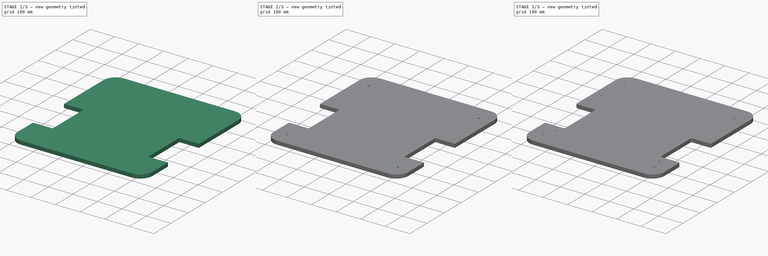
[diagram: build sequence overview — one tinted view per stage of 3, left to right]
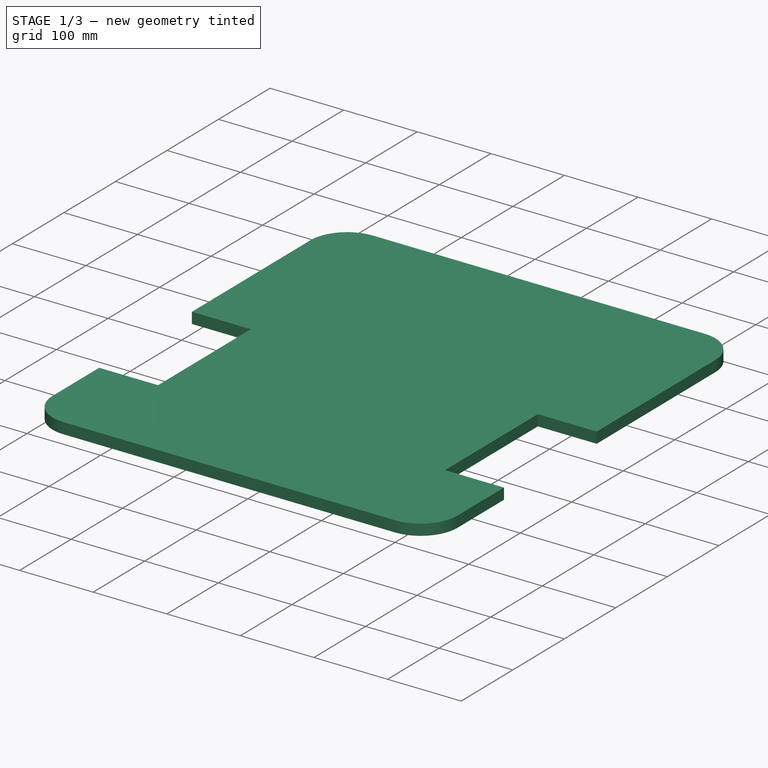
[diagram: stage 1 of 3 — iso view after this stage's code; geometry added in this stage tinted green]
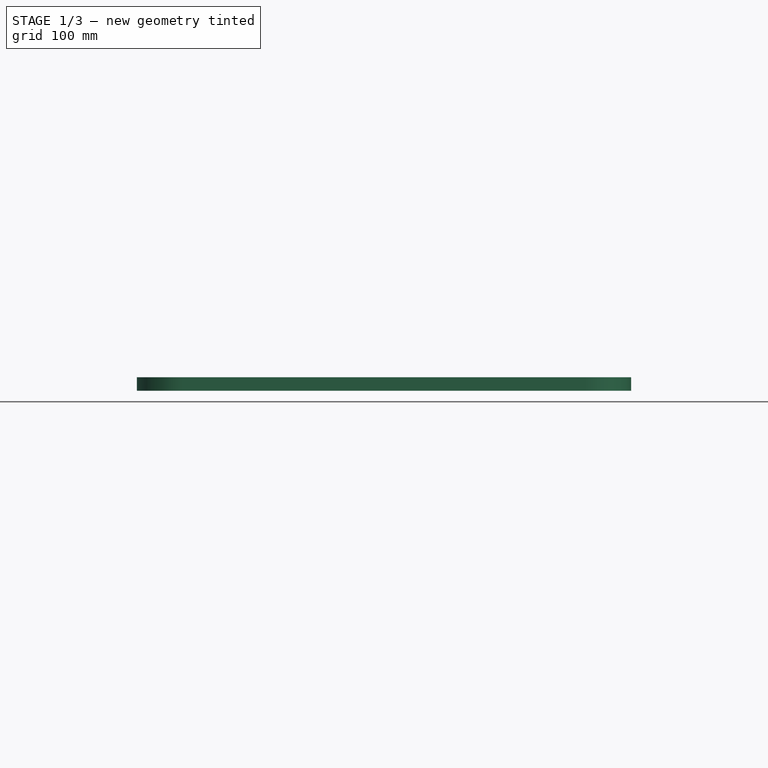
[diagram: stage 1 of 3 — front view after this stage's code; geometry added in this stage tinted green]
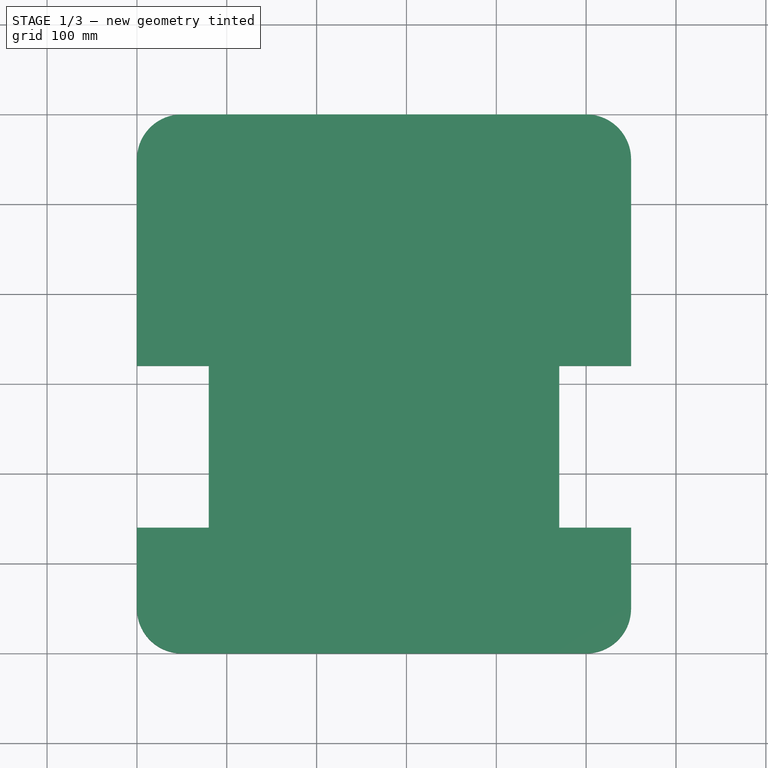
[diagram: stage 1 of 3 — top view after this stage's code; geometry added in this stage tinted green]
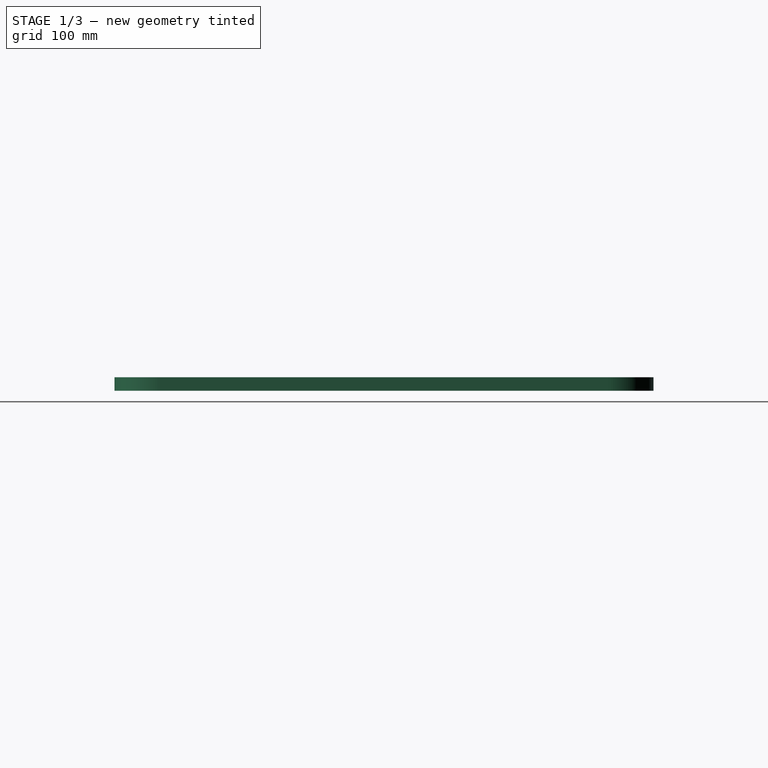
[diagram: stage 1 of 3 — right view after this stage's code; geometry added in this stage tinted green]
FCSTD DOCUMENT  (FreeCAD 0.20R29410 (Git))
Label: AGV02-101A_Base chassis
License: All rights reserved
LicenseURL: http://en.wikipedia.org/wiki/All_rights_reserved
objects: Sketcher::SketchObject×4, PartDesign::Hole×2, PartDesign::Pad×1, PartDesign::Pocket×1, PartDesign::Fillet×1, PartDesign::Body×1
note: 15 computed .brp shape members not serialized (recipe doc carries the construction recipe); baked Part::Feature solids carry a one-line shape summary decoded from their .brp

FEATURE [Sketcher::SketchObject] Sketch
  FullyConstrained = false
  MapMode = 5
  Support = -> [XY_Plane]
  sketch-geometry (16):
    g0: LineSegment StartX=50 StartY=0 StartZ=0 EndX=500 EndY=0 EndZ=0
    g1: LineSegment StartX=550 StartY=50 StartZ=0 EndX=550 EndY=140 EndZ=0
    g2: LineSegment StartX=500 StartY=600 StartZ=0 EndX=50 EndY=600 EndZ=0
    g3: LineSegment StartX=0 StartY=550 StartZ=0 EndX=0 EndY=320 EndZ=0
    g4: ArcOfCircle CenterX=50 CenterY=550 CenterZ=0 NormalX=0 NormalY=0 NormalZ=1 AngleXU=0 Radius=50 StartAngle=1.5708 EndAngle=3.14159
    g5: ArcOfCircle CenterX=50 CenterY=50 CenterZ=0 NormalX=0 NormalY=0 NormalZ=1 AngleXU=0 Radius=50 StartAngle=3.14159 EndAngle=4.71239
    g6: ArcOfCircle CenterX=500 CenterY=550 CenterZ=0 NormalX=0 NormalY=0 NormalZ=1 AngleXU=0 Radius=50 StartAngle=-9e-16 EndAngle=1.5708
    g7: ArcOfCircle CenterX=500 CenterY=50 CenterZ=0 NormalX=0 NormalY=0 NormalZ=1 AngleXU=0 Radius=50 StartAngle=4.71239 EndAngle=6.28319
    g8: LineSegment StartX=0 StartY=320 StartZ=0 EndX=80 EndY=320 EndZ=0
    g9: LineSegment StartX=80 StartY=320 StartZ=0 EndX=80 EndY=140 EndZ=0
    g10: LineSegment StartX=80 StartY=140 StartZ=0 EndX=0 EndY=140 EndZ=0
    g11: LineSegment StartX=550 StartY=320 StartZ=0 EndX=470 EndY=320 EndZ=0
    g12: LineSegment StartX=470 StartY=320 StartZ=0 EndX=470 EndY=140 EndZ=0
    g13: LineSegment StartX=470 StartY=140 StartZ=0 EndX=550 EndY=140 EndZ=0
    g14: LineSegment StartX=0 StartY=140 StartZ=0 EndX=0 EndY=50.0001 EndZ=0
    g15: LineSegment StartX=550 StartY=320 StartZ=0 EndX=550 EndY=550 EndZ=0
  constraints (40):
    c: Horizontal(g0)
    c: Horizontal(g2)
    c: Vertical(g1)
    c: Vertical(g3)
    c: Tangent(g3,g4) = -1.5708
    c: Tangent(g2,g4) = -1.5708
    c: Tangent(g0,g5) = -1.5708
    c: Coincident(g14,g5) = -1.5708
    c: Radius(g5) = 50
    c: Vertical(g14,g-1)
    c: Radius(g4) = 50
    c: Tangent(g2,g6) = -1.5708
    c: Coincident(g15,g6) = -1.5708
    c: Radius(g6) = 50
    c: Tangent(g1,g7) = -1.5708
    c: Tangent(g0,g7) = -1.5708
    c: Radius(g7) = 50
    c: DistanceX(g14,g1) = 550
    c: Horizontal(g0,g-1)
    c: DistanceY(g0,g2) = 600
    c: Coincident(g8,g9)
    c: Coincident(g9,g10)
    c: Horizontal(g8)
    c: Horizontal(g10)
    c: Vertical(g9)
    c: Coincident(g11,g12)
    c: Coincident(g12,g13)
    c: Horizontal(g11)
    c: Horizontal(g13)
    c: Vertical(g12)
    c: DistanceY(g9,g9) = 180
    c: DistanceX(g10,g10) = 80
    c: DistanceY(g-1,g9) = 140
    c: DistanceX(g12,g13) = 80
    c: DistanceY(g12,g12) = 180
    c: Coincident(g3,g8)
    c: PointOnObject(g14,g10)
    c: PointOnObject(g1,g13)
    c: Coincident(g15,g11)
    c: Horizontal(g12,g9)
FEATURE [PartDesign::Pad] Pad
  Direction = (0,0,1)
  Length = 15
  Length2 = 10
  Profile = -> Sketch
  ReferenceAxis = -> Sketch [N_Axis]
  Type = 0
FEATURE [Sketcher::SketchObject] Sketch001
  FullyConstrained = true
  MapMode = 5
  Placement = pos=(0,0,0) rot=(1,0,0;3.14159rad)
  Support = -> [Pad]
  sketch-geometry (4):
    g0: Circle CenterX=500 CenterY=-60 CenterZ=0 NormalX=0 NormalY=0 NormalZ=1 AngleXU=0 Radius=30
    g1: Circle CenterX=50 CenterY=-60 CenterZ=0 NormalX=0 NormalY=0 NormalZ=1 AngleXU=0 Radius=30
    g2: Circle CenterX=500 CenterY=-530 CenterZ=0 NormalX=0 NormalY=0 NormalZ=1 AngleXU=0 Radius=30
    g3: Circle CenterX=50 CenterY=-530 CenterZ=0 NormalX=0 NormalY=0 NormalZ=1 AngleXU=0 Radius=30
  constraints (12):
    c: Diameter(g0) = 60
    c: Diameter(g1) = 60
    c: Diameter(g3) = 60
    c: Diameter(g2) = 60
    c: Vertical(g2,g0)
    c: Vertical(g3,g1)
    c: Horizontal(g2,g3)
    c: Horizontal(g0,g1)
    c: DistanceX(g1,g0) = 450
    c: DistanceX(g-1,g1) = 50
    c: DistanceY(g1,g-1) = 60
    c: DistanceY(g3,g-1) = 530
FEATURE [PartDesign::Pocket] Pocket
  BaseFeature = -> Pad
  Direction = (0,0,1)
  Length = 5
  Length2 = 5
  Profile = -> Sketch001
  ReferenceAxis = -> Sketch001 [N_Axis]
  Type = 0
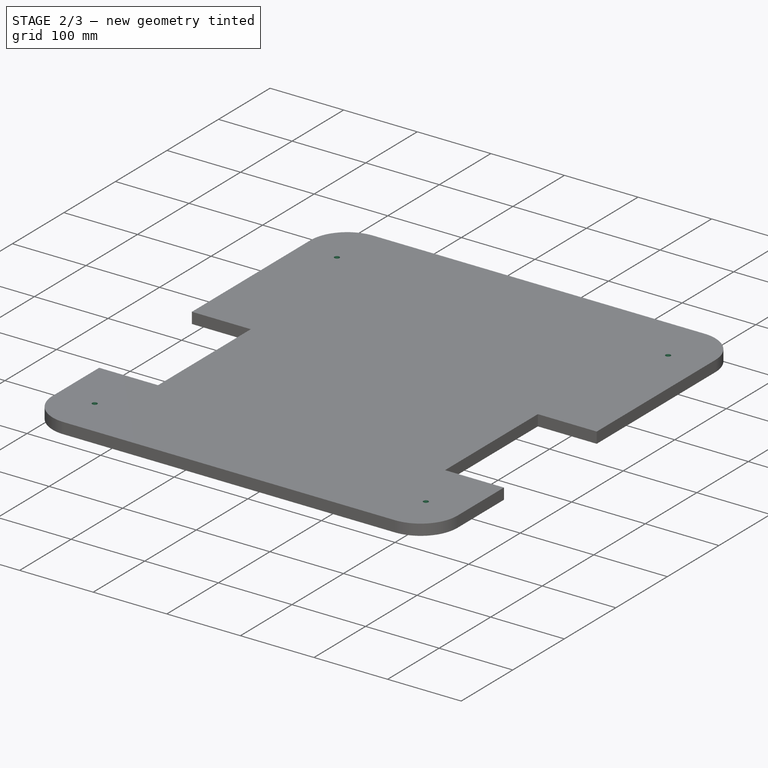
[diagram: stage 2 of 3 — iso view after this stage's code; geometry added in this stage tinted green]
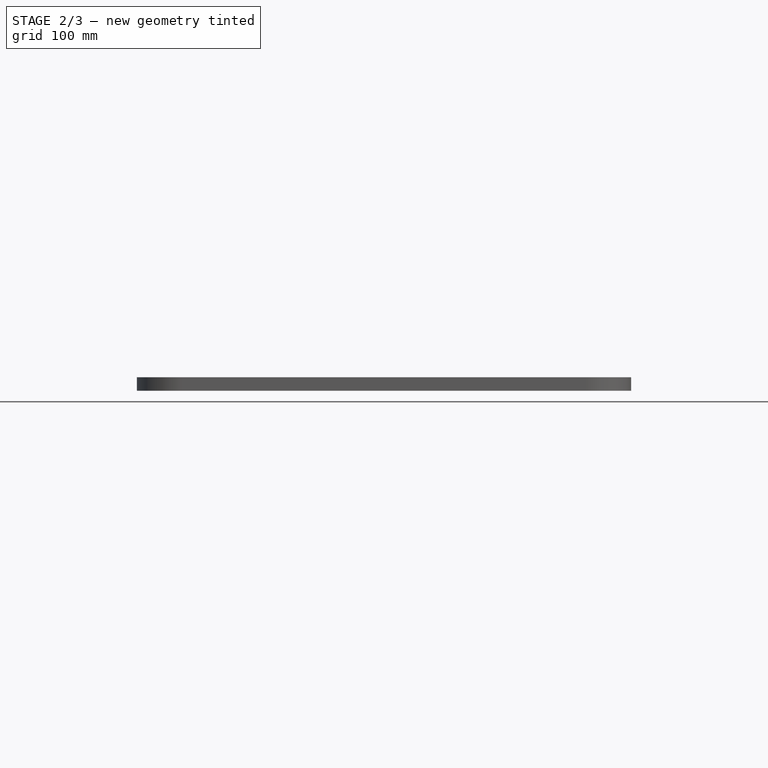
[diagram: stage 2 of 3 — front view after this stage's code; geometry added in this stage tinted green]
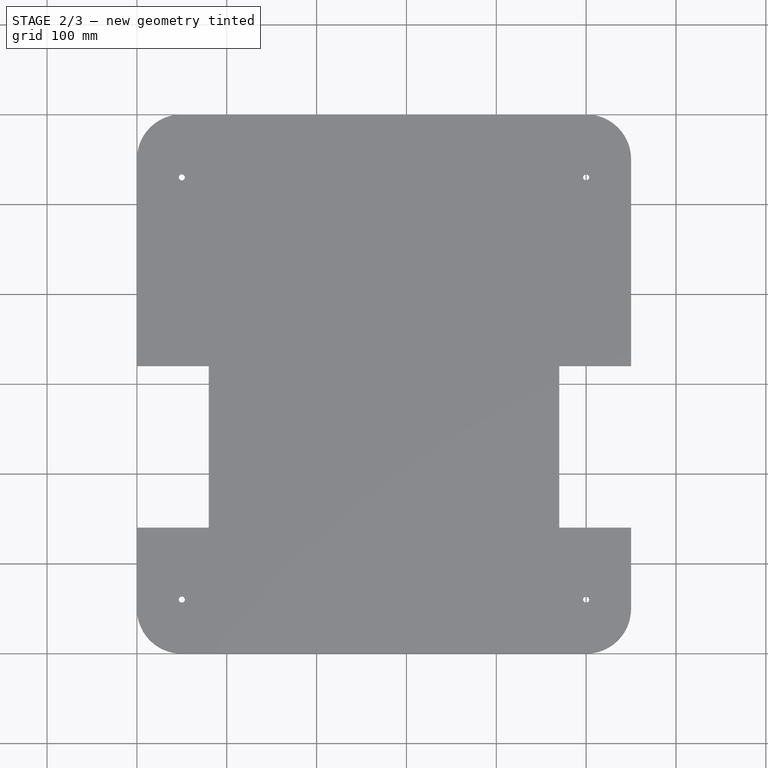
[diagram: stage 2 of 3 — top view after this stage's code; geometry added in this stage tinted green]
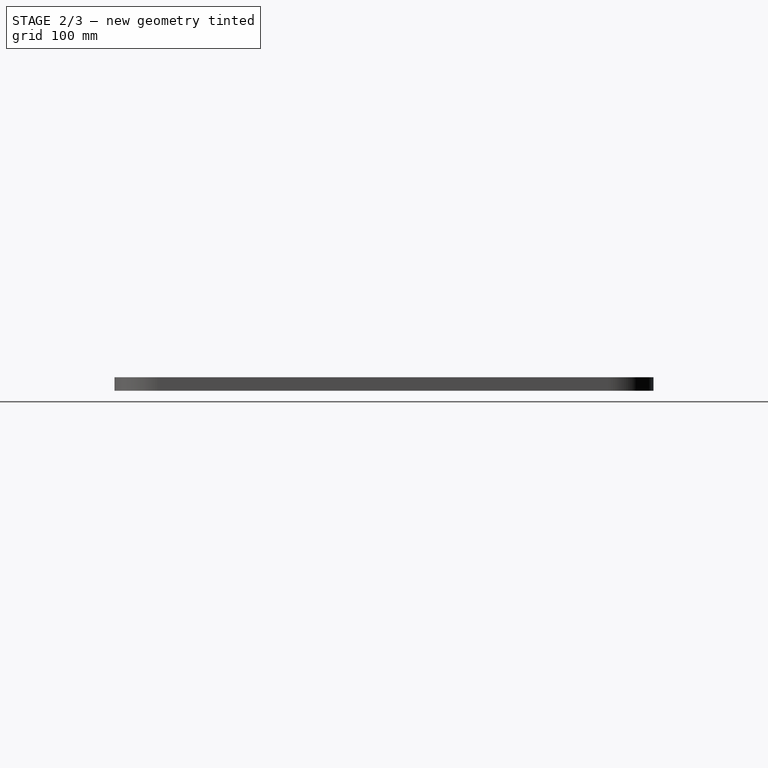
[diagram: stage 2 of 3 — right view after this stage's code; geometry added in this stage tinted green]
FEATURE [Sketcher::SketchObject] Sketch002
  ExternalGeometry = -> [Pocket]
  FullyConstrained = false
  MapMode = 5
  Placement = pos=(0,0,0) rot=(1,0,0;3.14159rad)
  Support = -> [Pocket]
  sketch-geometry (5):
    g0: GeomPoint X=50 Y=-60 Z=0
    g1: Circle CenterX=50 CenterY=-60 CenterZ=0 NormalX=0 NormalY=0 NormalZ=1 AngleXU=0 Radius=9.50673
    g2: Circle CenterX=500 CenterY=-60 CenterZ=0 NormalX=0 NormalY=0 NormalZ=1 AngleXU=0 Radius=11.4574
    g3: Circle CenterX=500 CenterY=-530 CenterZ=0 NormalX=0 NormalY=0 NormalZ=1 AngleXU=0 Radius=11.2641
    g4: Circle CenterX=50 CenterY=-530 CenterZ=0 NormalX=0 NormalY=0 NormalZ=1 AngleXU=0 Radius=10.4268
  constraints (4):
    c: Coincident(g1,g0)
    c: Coincident(g2,g-4)
    c: Coincident(g3,g-5)
    c: Coincident(g4,g-6)
FEATURE [PartDesign::Hole] Hole
  BaseFeature = -> Pocket
  CustomThreadClearance = 0
  Depth = 1644.44
  DepthType = 1
  Diameter = 6.8
  DrillForDepth = false
  DrillPoint = 1
  DrillPointAngle = 118
  HoleCutCountersinkAngle = 90
  HoleCutCustomValues = false
  HoleCutDepth = 0
  HoleCutDiameter = 6.1
  HoleCutType = 0
  ModelThread = false
  Profile = -> Sketch002
  Tapered = false
  TaperedAngle = 90
  ThreadClass = 0
  ThreadDepth = 1644.44
  ThreadDepthType = 0
  ThreadDirection = 0
  ThreadFit = 0
  ThreadSize = 16
  ThreadType = 1
  Threaded = true
  UseCustomThreadClearance = false
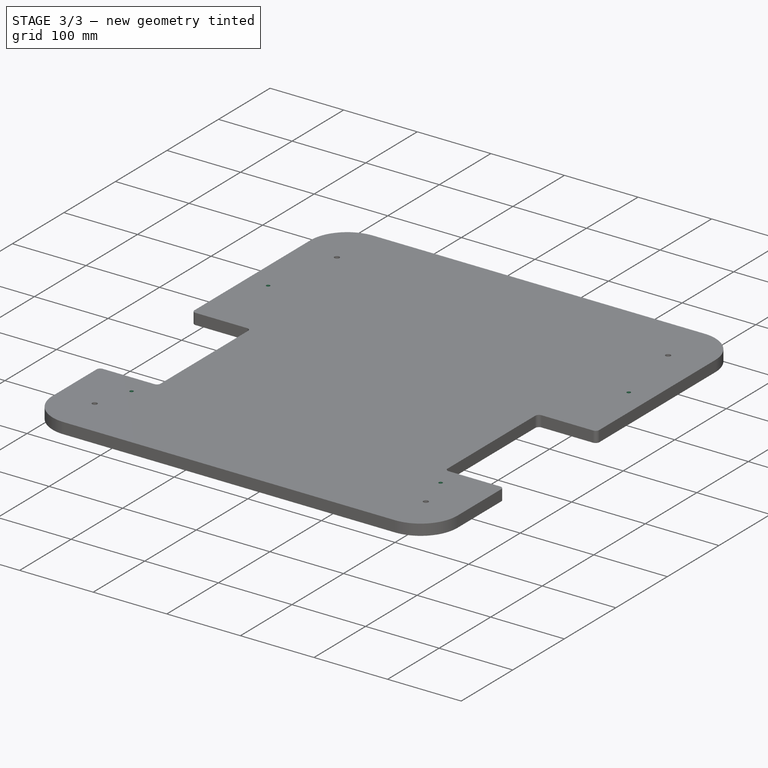
[diagram: stage 3 of 3 — iso view after this stage's code; geometry added in this stage tinted green]
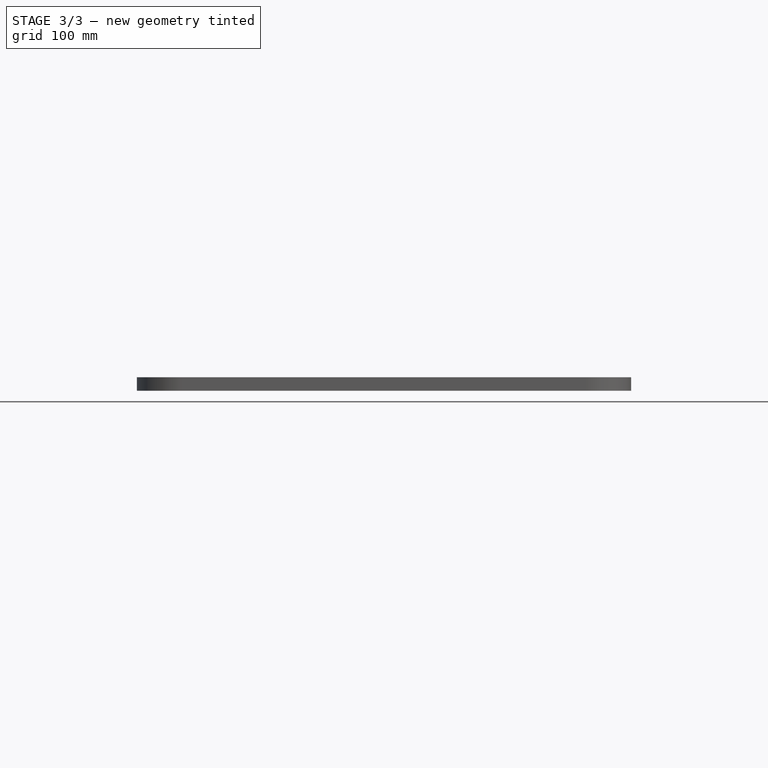
[diagram: stage 3 of 3 — front view after this stage's code; geometry added in this stage tinted green]
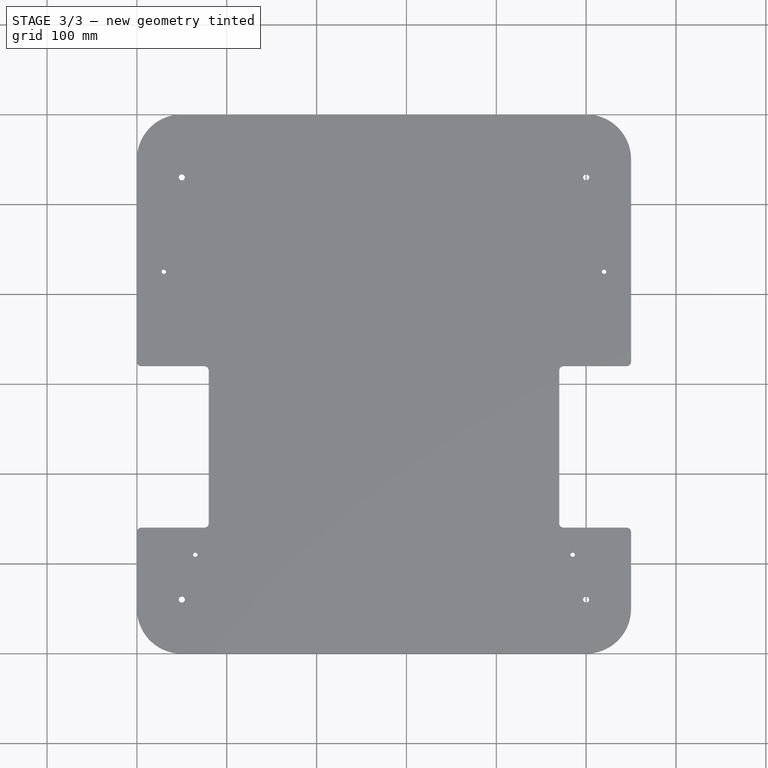
[diagram: stage 3 of 3 — top view after this stage's code; geometry added in this stage tinted green]
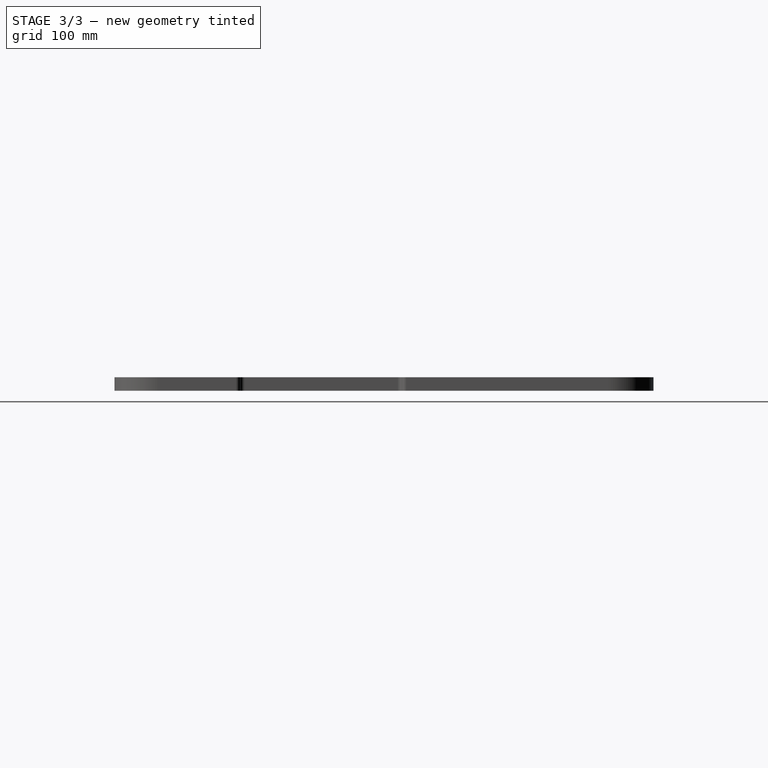
[diagram: stage 3 of 3 — right view after this stage's code; geometry added in this stage tinted green]
FEATURE [PartDesign::Fillet] Fillet
  Base = -> Hole [Edge1,Edge47,Edge5,Edge45,Edge54,Edge56,Edge50,Edge52]
  BaseFeature = -> Hole
  Radius = 5
  SupportTransform = false
  UseAllEdges = false
FEATURE [Sketcher::SketchObject] Sketch003
  FullyConstrained = false
  MapMode = 5
  Placement = pos=(0,0,15) rot=(0,0,1;0rad)
  Support = -> [Fillet]
  sketch-geometry (4):
    g0: Circle CenterX=30 CenterY=425 CenterZ=0 NormalX=0 NormalY=0 NormalZ=1 AngleXU=0 Radius=4.68572
    g1: Circle CenterX=520 CenterY=425 CenterZ=0 NormalX=0 NormalY=0 NormalZ=1 AngleXU=0 Radius=4.95725
    g2: Circle CenterX=65 CenterY=110 CenterZ=0 NormalX=0 NormalY=0 NormalZ=1 AngleXU=0 Radius=8.27822
    g3: Circle CenterX=485 CenterY=110 CenterZ=0 NormalX=0 NormalY=0 NormalZ=1 AngleXU=0 Radius=7.2264
  constraints (7):
    c: Horizontal(g1,g0)
    c: DistanceY(g-1,g0) = 425
    c: DistanceX(g0,g1) = 490
    c: Horizontal(g2,g3)
    c: DistanceY(g-1,g2) = 110
    c: DistanceX(g2,g3) = 420
    c: DistanceX(g-1,g2) = 65
FEATURE [PartDesign::Hole] Hole001
  BaseFeature = -> Fillet
  CustomThreadClearance = 0
  Depth = 1644.44
  DepthType = 1
  Diameter = 5
  DrillForDepth = false
  DrillPoint = 1
  DrillPointAngle = 118
  HoleCutCountersinkAngle = 90
  HoleCutCustomValues = false
  HoleCutDepth = 0
  HoleCutDiameter = 6.1
  HoleCutType = 0
  ModelThread = false
  Profile = -> Sketch003
  Tapered = false
  TaperedAngle = 90
  ThreadClass = 0
  ThreadDepth = 1644.44
  ThreadDepthType = 0
  ThreadDirection = 0
  ThreadFit = 0
  ThreadSize = 14
  ThreadType = 1
  Threaded = true
  UseCustomThreadClearance = false
FEATURE [PartDesign::Body] Body
  Group = -> [Sketch,Pad,Sketch001,Pocket,Sketch002,Hole,Fillet,Sketch003,Hole001]
  Origin = -> Origin
  Tip = -> Hole001
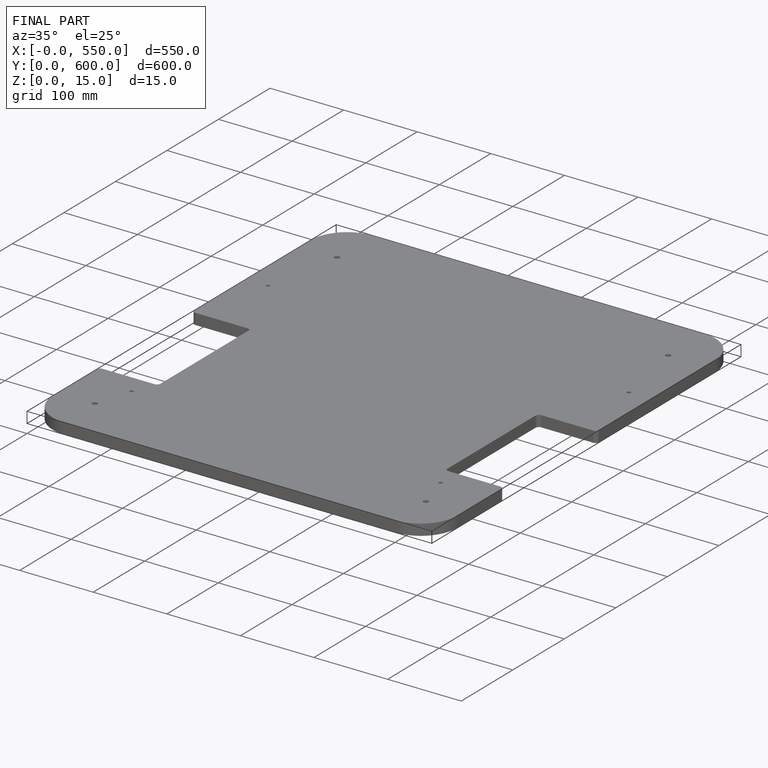
[diagram: finished part — iso view with bounding-box wireframe]
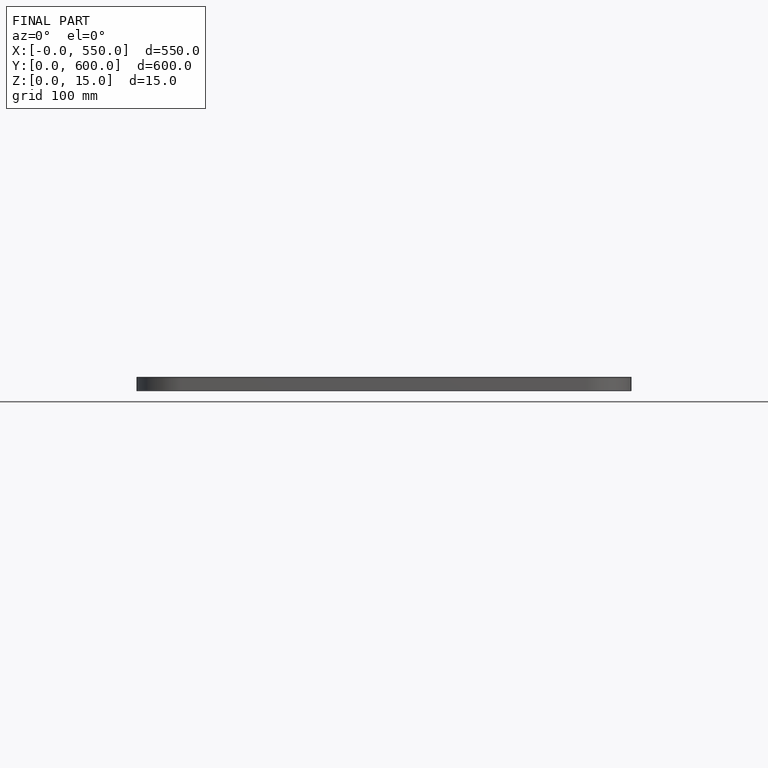
[diagram: finished part — front view with bounding-box wireframe]
